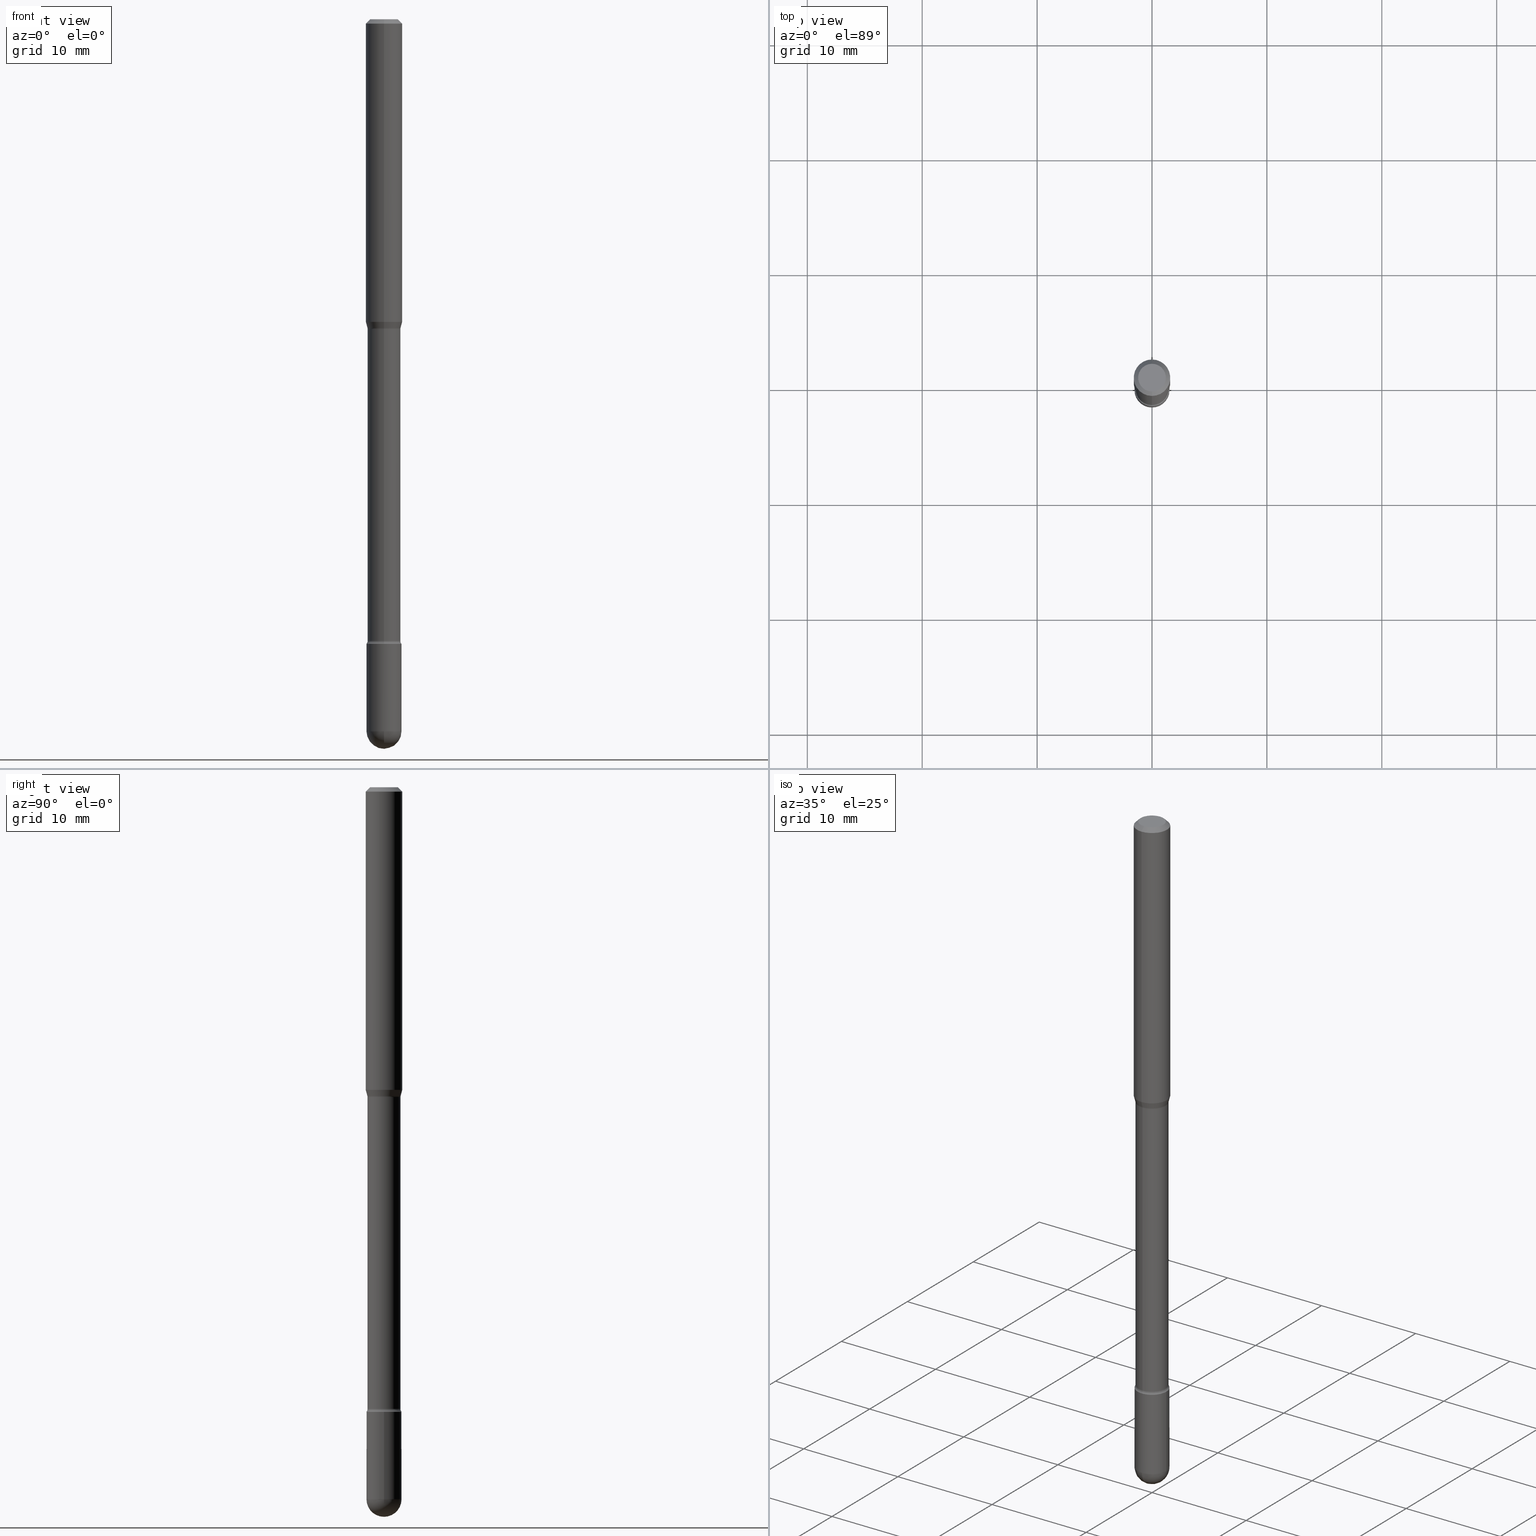
[diagram: canonical four-view strip — front | top / right | iso, engineering-drawing reading convention]
A machine part, canonical four-view strip (front | top / right | iso — engineering-drawing reading convention). The complete STEP part file that produces these views, byte-faithful:
ISO-10303-21;
HEADER;
FILE_DESCRIPTION (( 'STEP AP203' ),
    '1' );
FILE_NAME ('04593.STEP',
    '2024-04-09T22:14:13',
    ( '' ),
    ( '' ),
    'SwSTEP 2.0',
    'SolidWorks 2023',
    '' );
FILE_SCHEMA (( 'CONFIG_CONTROL_DESIGN' ));
ENDSEC;

DATA;
#1 = CARTESIAN_POINT ( 'NONE',  ( 0.000000000000000000, 0.000000000000000000, 0.000000000000000000 ) ) ;
#2 = CARTESIAN_POINT ( 'NONE',  ( -0.05999999999999999084, 4.263256414560600464E-16, -2.951361054152942712E-30 ) ) ;
#3 = ORIENTED_EDGE ( 'NONE', *, *, #488, .F. ) ;
#4 = ADVANCED_FACE ( 'NONE', ( #321 ), #490, .F. ) ;
#5 = APPROVAL_ROLE ( '' ) ;
#6 = DIRECTION ( 'NONE',  ( -6.982962677686265922E-15, -1.000000000000000000, 2.400100673301879051E-15 ) ) ;
#7 = EDGE_LOOP ( 'NONE', ( #3, #138, #44, #496 ) ) ;
#8 = EDGE_CURVE ( 'NONE', #464, #518, #281, .T. ) ;
#9 = DIRECTION ( 'NONE',  ( -2.445553399575097308E-29, 3.491360196293965350E-15, 1.000000000000000000 ) ) ;
#10 = AXIS2_PLACEMENT_3D ( 'NONE', #105, #279, #236 ) ;
#11 = AXIS2_PLACEMENT_3D ( 'NONE', #266, #137, #317 ) ;
#12 = ORIENTED_EDGE ( 'NONE', *, *, #394, .T. ) ;
#13 = PLANE ( 'NONE',  #218 ) ;
#14 = EDGE_LOOP ( 'NONE', ( #49, #548, #434, #20 ) ) ;
#15 = LINE ( 'NONE', #272, #294 ) ;
#16 = EDGE_CURVE ( 'NONE', #464, #282, #238, .T. ) ;
#17 = CARTESIAN_POINT ( 'NONE',  ( 0.05999999999999999778, -7.890747825785508520E-15, -2.140000000000000124 ) ) ;
#18 = DIRECTION ( 'NONE',  ( -2.445553399575097308E-29, 3.491360196293965350E-15, 1.000000000000000000 ) ) ;
#19 = VECTOR ( 'NONE', #166, 39.37007874015748143 ) ;
#20 = ORIENTED_EDGE ( 'NONE', *, *, #100, .F. ) ;
#21 = AXIS2_PLACEMENT_3D ( 'NONE', #345, #375, #254 ) ;
#22 = PERSON_AND_ORGANIZATION_ROLE ( 'creator' ) ;
#23 = EDGE_CURVE ( 'NONE', #363, #286, #234, .T. ) ;
#24 = DATE_AND_TIME ( #354, #554 ) ;
#25 = CARTESIAN_POINT ( 'NONE',  ( 5.233484275090707986E-29, -7.471510820069086511E-15, -2.140000000000000124 ) ) ;
#26 = EDGE_CURVE ( 'NONE', #429, #107, #521, .T. ) ;
#27 = VERTEX_POINT ( 'NONE', #17 ) ;
#28 = CARTESIAN_POINT ( 'NONE',  ( -3.974081752709260107E-16, -0.05691111260566766861, -1.058092501787273099 ) ) ;
#29 = FACE_OUTER_BOUND ( 'NONE', #482, .T. ) ;
#30 = SPHERICAL_SURFACE ( 'NONE', #247, 0.05999999999999994921 ) ;
#31 = AXIS2_PLACEMENT_3D ( 'NONE', #191, #364, #273 ) ;
#32 = FACE_OUTER_BOUND ( 'NONE', #532, .T. ) ;
#33 = FACE_OUTER_BOUND ( 'NONE', #451, .T. ) ;
#34 = CARTESIAN_POINT ( 'NONE',  ( 2.597026215697840121E-29, -3.707865152751812018E-15, -1.061974787463811021 ) ) ;
#35 = DIRECTION ( 'NONE',  ( -2.445553399575097308E-29, 3.491360196293965350E-15, 1.000000000000000000 ) ) ;
#36 = PERSON_AND_ORGANIZATION ( #213, #157 ) ;
#37 = CC_DESIGN_PERSON_AND_ORGANIZATION_ASSIGNMENT ( #533, #22, ( #436 ) ) ;
#38 = CARTESIAN_POINT ( 'NONE',  ( 4.263256414561126536E-16, 0.05999999999999256622, -2.140000000000000568 ) ) ;
#39 = DIRECTION ( 'NONE',  ( 1.000000000000000000, -6.982962677686268288E-15, 0.000000000000000000 ) ) ;
#40 = VECTOR ( 'NONE', #119, 39.37007874015748143 ) ;
#41 = CIRCLE ( 'NONE', #11, 0.05999999999999999778 ) ;
#42 = CARTESIAN_POINT ( 'NONE',  ( -4.189777606611237800E-16, -0.06000000000000750566, -2.139999999999999680 ) ) ;
#43 = ADVANCED_FACE ( 'NONE', ( #250 ), #153, .T. ) ;
#44 = ORIENTED_EDGE ( 'NONE', *, *, #160, .T. ) ;
#45 = CARTESIAN_POINT ( 'NONE',  ( 2.597026215697840121E-29, -3.707865152751812018E-15, -1.061974787463811021 ) ) ;
#46 = ADVANCED_FACE ( 'NONE', ( #29 ), #30, .T. ) ;
#47 = ORIENTED_EDGE ( 'NONE', *, *, #88, .T. ) ;
#48 = DIRECTION ( 'NONE',  ( 1.000000000000000000, -7.105427357601001070E-15, 4.926314024973731565E-29 ) ) ;
#49 = ORIENTED_EDGE ( 'NONE', *, *, #322, .F. ) ;
#50 = DIRECTION ( 'NONE',  ( -6.982962677686265922E-15, -1.000000000000000000, 3.491360196293965350E-15 ) ) ;
#51 = AXIS2_PLACEMENT_3D ( 'NONE', #25, #201, #368 ) ;
#52 = AXIS2_PLACEMENT_3D ( 'NONE', #1, #179, #79 ) ;
#53 = ORIENTED_EDGE ( 'NONE', *, *, #115, .F. ) ;
#54 = EDGE_CURVE ( 'NONE', #498, #264, #483, .T. ) ;
#55 = ADVANCED_BREP_SHAPE_REPRESENTATION ( '04593', ( #537, #528, #52 ), #316 ) ;
#56 = CARTESIAN_POINT ( 'NONE',  ( 4.007461029687488566E-16, 0.05639999999999628644, -1.061974787463811021 ) ) ;
#57 = ORIENTED_EDGE ( 'NONE', *, *, #251, .F. ) ;
#58 = DIRECTION ( 'NONE',  ( 6.982962677686265922E-15, 1.000000000000000000, -4.553079989440442247E-15 ) ) ;
#59 = ORIENTED_EDGE ( 'NONE', *, *, #455, .T. ) ;
#60 = APPROVAL_ROLE ( '' ) ;
#61 = LINE ( 'NONE', #92, #495 ) ;
#62 = AXIS2_PLACEMENT_3D ( 'NONE', #146, #284, #547 ) ;
#63 = ORIENTED_EDGE ( 'NONE', *, *, #23, .F. ) ;
#64 = CC_DESIGN_APPROVAL ( #67, ( #436 ) ) ;
#65 = ORIENTED_EDGE ( 'NONE', *, *, #455, .F. ) ;
#66 = EDGE_CURVE ( 'NONE', #232, #282, #339, .T. ) ;
#67 = APPROVAL ( #185, 'UNSPECIFIED' ) ;
#68 = ORIENTED_EDGE ( 'NONE', *, *, #263, .T. ) ;
#69 = DIRECTION ( 'NONE',  ( -1.807323732225338028E-15, -0.2588190451025192962, 0.9659258262890687563 ) ) ;
#70 = CIRCLE ( 'NONE', #324, 0.05999999999999999084 ) ;
#71 = APPROVAL_PERSON_ORGANIZATION ( #269, #328, #479 ) ;
#72 = DIRECTION ( 'NONE',  ( -2.445553399575097308E-29, 3.491360196293965350E-15, 1.000000000000000000 ) ) ;
#73 = DIRECTION ( 'NONE',  ( -2.445553399575097308E-29, 3.491360196293965350E-15, 1.000000000000000000 ) ) ;
#74 = DIRECTION ( 'NONE',  ( -1.000000000000000000, 6.982962677686265922E-15, -4.883557194083112901E-29 ) ) ;
#75 = CIRCLE ( 'NONE', #481, 0.05640000000000008201 ) ;
#76 = AXIS2_PLACEMENT_3D ( 'NONE', #342, #507, #513 ) ;
#77 = DIRECTION ( 'NONE',  ( -2.445553399575097308E-29, 3.491360196293965350E-15, 1.000000000000000000 ) ) ;
#78 = ORIENTED_EDGE ( 'NONE', *, *, #158, .T. ) ;
#79 = DIRECTION ( 'NONE',  ( 1.000000000000000000, 0.000000000000000000, 0.000000000000000000 ) ) ;
#80 = CARTESIAN_POINT ( 'NONE',  ( 2.536612333356597965E-29, -3.621359212867038720E-15, -1.037234490073830173 ) ) ;
#81 = CARTESIAN_POINT ( 'NONE',  ( -4.985835351867481885E-16, -0.07140000000000755465, -2.130251153914436646 ) ) ;
#82 =( CONVERSION_BASED_UNIT ( 'INCH', #467 ) LENGTH_UNIT ( ) NAMED_UNIT ( #476 ) );
#83 = CARTESIAN_POINT ( 'NONE',  ( -4.364351673553912750E-16, -0.06250000000000005551, -0.01499999999999986587 ) ) ;
#84 = ORIENTED_EDGE ( 'NONE', *, *, #94, .T. ) ;
#85 = CARTESIAN_POINT ( 'NONE',  ( -3.773273898774340269E-16, -0.04749999999999999362, 8.308682298133193977E-17 ) ) ;
#86 = CIRCLE ( 'NONE', #403, 0.05691111260566397018 ) ;
#87 = CIRCLE ( 'NONE', #76, 0.05999999999999999084 ) ;
#88 = EDGE_CURVE ( 'NONE', #164, #337, #243, .T. ) ;
#89 = ORIENTED_EDGE ( 'NONE', *, *, #542, .F. ) ;
#90 = CARTESIAN_POINT ( 'NONE',  ( 5.966943887091733341E-29, -8.519214466777275048E-15, -2.440000000000000391 ) ) ;
#91 = ORIENTED_EDGE ( 'NONE', *, *, #520, .F. ) ;
#92 = CARTESIAN_POINT ( 'NONE',  ( 4.043777764598218465E-16, 0.05691111260566027868, -1.058092501787273321 ) ) ;
#93 = VERTEX_POINT ( 'NONE', #167 ) ;
#94 = EDGE_CURVE ( 'NONE', #264, #402, #374, .T. ) ;
#95 = CARTESIAN_POINT ( 'NONE',  ( 4.242334931549550257E-16, 0.05691111260566027868, -1.058092501787273321 ) ) ;
#96 = AXIS2_PLACEMENT_3D ( 'NONE', #544, #148, #327 ) ;
#97 = LOCAL_TIME ( 18, 14, 13.00000000000000000, #283 ) ;
#98 = EDGE_LOOP ( 'NONE', ( #492, #486, #445, #329, #89 ) ) ;
#99 = PERSON_AND_ORGANIZATION_ROLE ( 'design_supplier' ) ;
#100 = EDGE_CURVE ( 'NONE', #267, #145, #112, .T. ) ;
#101 = DIRECTION ( 'NONE',  ( -2.445553399575096747E-29, 3.491360196293965350E-15, 1.000000000000000000 ) ) ;
#102 = ORIENTED_EDGE ( 'NONE', *, *, #497, .T. ) ;
#103 = DIRECTION ( 'NONE',  ( -2.445468806185136597E-29, 3.491481338843145583E-15, 1.000000000000000000 ) ) ;
#104 = FACE_OUTER_BOUND ( 'NONE', #229, .T. ) ;
#105 = CARTESIAN_POINT ( 'NONE',  ( 3.316907271900976096E-16, 0.04749999999999999362, 3.182069695034395356E-17 ) ) ;
#106 = DATE_AND_TIME ( #541, #208 ) ;
#107 = VERTEX_POINT ( 'NONE', #378 ) ;
#108 = ORIENTED_EDGE ( 'NONE', *, *, #488, .T. ) ;
#109 = CARTESIAN_POINT ( 'NONE',  ( 4.440892098500877611E-16, 0.06249999999999636402, -1.037234490073830395 ) ) ;
#110 = ORIENTED_EDGE ( 'NONE', *, *, #100, .T. ) ;
#111 = PLANE ( 'NONE',  #411 ) ;
#112 = CIRCLE ( 'NONE', #381, 0.01499999999999998557 ) ;
#113 = CONICAL_SURFACE ( 'NONE', #341, 0.06250000000000000000, 0.7853981633974483900 ) ;
#114 = DIRECTION ( 'NONE',  ( -7.105427357601001070E-15, -1.000000000000000000, 0.000000000000000000 ) ) ;
#115 = EDGE_CURVE ( 'NONE', #468, #402, #373, .T. ) ;
#116 = CARTESIAN_POINT ( 'NONE',  ( -3.938390950214793722E-16, -0.05640000000000369718, -1.061974787463810799 ) ) ;
#117 = UNCERTAINTY_MEASURE_WITH_UNIT (LENGTH_MEASURE( 1.000000000000000082E-05 ), #82, 'distance_accuracy_value', 'NONE');
#118 = CARTESIAN_POINT ( 'NONE',  ( 2.536612333356597965E-29, -3.621359212867038720E-15, -1.037234490073830173 ) ) ;
#119 = DIRECTION ( 'NONE',  ( -2.445468806185136877E-29, 3.491481338843145188E-15, 1.000000000000000000 ) ) ;
#120 = EDGE_CURVE ( 'NONE', #144, #27, #246, .T. ) ;
#121 = CIRCLE ( 'NONE', #435, 0.06250000000000000000 ) ;
#122 = FACE_OUTER_BOUND ( 'NONE', #136, .T. ) ;
#123 = AXIS2_PLACEMENT_3D ( 'NONE', #189, #9, #182 ) ;
#124 = DIRECTION ( 'NONE',  ( -2.445553399575097308E-29, 3.491360196293965350E-15, 1.000000000000000000 ) ) ;
#125 = DIRECTION ( 'NONE',  ( 7.105427357601006592E-15, 1.000000000000000000, 0.000000000000000000 ) ) ;
#126 = CARTESIAN_POINT ( 'NONE',  ( 5.209462746237647655E-29, -7.437732150941334184E-15, -2.130251153914437090 ) ) ;
#127 = ORIENTED_EDGE ( 'NONE', *, *, #512, .T. ) ;
#128 = ORIENTED_EDGE ( 'NONE', *, *, #555, .T. ) ;
#129 = AXIS2_PLACEMENT_3D ( 'NONE', #45, #559, #222 ) ;
#130 = CC_DESIGN_APPROVAL ( #328, ( #235 ) ) ;
#131 = PRODUCT_DEFINITION ( 'UNKNOWN', '', #436, #458 ) ;
#132 = FACE_OUTER_BOUND ( 'NONE', #450, .T. ) ;
#133 = ORIENTED_EDGE ( 'NONE', *, *, #377, .T. ) ;
#134 = MECHANICAL_CONTEXT ( 'NONE', #396, 'mechanical' ) ;
#135 = DIRECTION ( 'NONE',  ( -6.982962677686265922E-15, -1.000000000000000000, 3.483106191921935554E-15 ) ) ;
#136 = EDGE_LOOP ( 'NONE', ( #318, #68, #65, #350, #187 ) ) ;
#137 = DIRECTION ( 'NONE',  ( -2.445468806185136597E-29, 3.491481338843145583E-15, 1.000000000000000000 ) ) ;
#138 = ORIENTED_EDGE ( 'NONE', *, *, #322, .T. ) ;
#139 = PERSON_AND_ORGANIZATION_ROLE ( 'classification_officer' ) ;
#140 = TOROIDAL_SURFACE ( 'NONE', #31, 0.07140000000000013003, 0.01500000000000004108 ) ;
#141 = SPHERICAL_SURFACE ( 'NONE', #303, 0.05999999999999994921 ) ;
#142 = ORIENTED_EDGE ( 'NONE', *, *, #8, .T. ) ;
#143 = FACE_OUTER_BOUND ( 'NONE', #7, .T. ) ;
#144 = VERTEX_POINT ( 'NONE', #506 ) ;
#145 = VERTEX_POINT ( 'NONE', #116 ) ;
#146 = CARTESIAN_POINT ( 'NONE',  ( -1.169113584055446105E-44, 1.669184350826100908E-30, 4.780733988912460139E-16 ) ) ;
#147 = AXIS2_PLACEMENT_3D ( 'NONE', #34, #124, #387 ) ;
#148 = DIRECTION ( 'NONE',  ( -2.445468806185136597E-29, 3.491481338843145583E-15, 1.000000000000000000 ) ) ;
#149 = AXIS2_PLACEMENT_3D ( 'NONE', #278, #362, #395 ) ;
#150 = FACE_OUTER_BOUND ( 'NONE', #14, .T. ) ;
#151 = ORIENTED_EDGE ( 'NONE', *, *, #251, .T. ) ;
#152 = EDGE_CURVE ( 'NONE', #145, #402, #369, .T. ) ;
#153 = CYLINDRICAL_SURFACE ( 'NONE', #240, 0.06250000000000000000 ) ;
#154 = DIRECTION ( 'NONE',  ( 1.000000000000000000, -7.105427357601001070E-15, 4.926314024973731565E-29 ) ) ;
#155 = CIRCLE ( 'NONE', #461, 0.05691111260566397018 ) ;
#156 = PRODUCT ( '04593', '04593', '', ( #134 ) ) ;
#157 = ORGANIZATION ( 'UNSPECIFIED', 'UNSPECIFIED', '' ) ;
#158 = EDGE_CURVE ( 'NONE', #93, #383, #302, .T. ) ;
#159 = LINE ( 'NONE', #28, #471 ) ;
#160 = EDGE_CURVE ( 'NONE', #267, #164, #159, .T. ) ;
#161 = CC_DESIGN_DATE_AND_TIME_ASSIGNMENT ( #106, #188, ( #131 ) ) ;
#162 = DIRECTION ( 'NONE',  ( 2.445553399575097308E-29, -3.491360196293965350E-15, -1.000000000000000000 ) ) ;
#163 = DIRECTION ( 'NONE',  ( -6.982962677686265133E-15, -1.000000000000000000, 4.843702116425991330E-15 ) ) ;
#164 = VERTEX_POINT ( 'NONE', #457 ) ;
#165 = LINE ( 'NONE', #219, #257 ) ;
#166 = DIRECTION ( 'NONE',  ( -2.445468806185136877E-29, 3.491481338843145188E-15, 1.000000000000000000 ) ) ;
#167 = CARTESIAN_POINT ( 'NONE',  ( 6.116237514330379097E-29, -8.725029406710421437E-15, -2.500000000000000000 ) ) ;
#168 = AXIS2_PLACEMENT_3D ( 'NONE', #81, #320, #406 ) ;
#169 = PERSON_AND_ORGANIZATION_ROLE ( 'creator' ) ;
#170 = AXIS2_PLACEMENT_3D ( 'NONE', #430, #443, #440 ) ;
#171 = EDGE_LOOP ( 'NONE', ( #344, #306, #178, #174 ) ) ;
#172 = DIRECTION ( 'NONE',  ( 1.000000000000000000, -6.982962677686266711E-15, 4.876176775795935793E-29 ) ) ;
#173 = DIRECTION ( 'NONE',  ( -6.982962677686265133E-15, -1.000000000000000000, 4.843702116425991330E-15 ) ) ;
#174 = ORIENTED_EDGE ( 'NONE', *, *, #459, .T. ) ;
#175 = CC_DESIGN_PERSON_AND_ORGANIZATION_ASSIGNMENT ( #280, #139, ( #235 ) ) ;
#176 = FACE_OUTER_BOUND ( 'NONE', #478, .T. ) ;
#177 = DIRECTION ( 'NONE',  ( -2.445553399575097308E-29, 3.491360196293965350E-15, 1.000000000000000000 ) ) ;
#178 = ORIENTED_EDGE ( 'NONE', *, *, #16, .T. ) ;
#179 = DIRECTION ( 'NONE',  ( 0.000000000000000000, 0.000000000000000000, 1.000000000000000000 ) ) ;
#180 = AXIS2_PLACEMENT_3D ( 'NONE', #325, #449, #199 ) ;
#181 = AXIS2_PLACEMENT_3D ( 'NONE', #358, #526, #276 ) ;
#182 = DIRECTION ( 'NONE',  ( -6.982962677686265922E-15, -1.000000000000000000, 2.421851058212999609E-15 ) ) ;
#183 = DIRECTION ( 'NONE',  ( 1.000000000000000000, -6.982962677686265922E-15, 4.876176775795935793E-29 ) ) ;
#184 = ORIENTED_EDGE ( 'NONE', *, *, #542, .T. ) ;
#185 = APPROVAL_STATUS ( 'not_yet_approved' ) ;
#186 = CARTESIAN_POINT ( 'NONE',  ( 2.024167998139961065E-45, -2.888618693388451432E-31, -8.275278634263140498E-17 ) ) ;
#187 = ORIENTED_EDGE ( 'NONE', *, *, #520, .T. ) ;
#188 = DATE_TIME_ROLE ( 'creation_date' ) ;
#189 = CARTESIAN_POINT ( 'NONE',  ( 2.597116051745163979E-29, -3.707736502418893280E-15, -1.061974787463811021 ) ) ;
#190 = ORIENTED_EDGE ( 'NONE', *, *, #94, .F. ) ;
#191 = CARTESIAN_POINT ( 'NONE',  ( 5.209462746237647655E-29, -7.437732150941334184E-15, -2.130251153914437090 ) ) ;
#192 = AXIS2_PLACEMENT_3D ( 'NONE', #205, #72, #560 ) ;
#193 = CARTESIAN_POINT ( 'NONE',  ( 5.073275133327644228E-16, 0.07139999999999269154, -2.130251153914437090 ) ) ;
#194 = CIRCLE ( 'NONE', #123, 0.05639999999999999181 ) ;
#195 = ORIENTED_EDGE ( 'NONE', *, *, #160, .F. ) ;
#196 = EDGE_CURVE ( 'NONE', #383, #144, #70, .T. ) ;
#197 = ORIENTED_EDGE ( 'NONE', *, *, #497, .F. ) ;
#198 = ADVANCED_FACE ( 'NONE', ( #33 ), #111, .T. ) ;
#199 = DIRECTION ( 'NONE',  ( -6.982962677686265133E-15, -1.000000000000000000, 3.491360196293964561E-15 ) ) ;
#200 = PRODUCT_DEFINITION_SHAPE ( 'NONE', 'NONE',  #131 ) ;
#201 = DIRECTION ( 'NONE',  ( -2.445553399575097308E-29, 3.491360196293965350E-15, 1.000000000000000000 ) ) ;
#202 = EDGE_CURVE ( 'NONE', #498, #363, #508, .T. ) ;
#203 = EDGE_LOOP ( 'NONE', ( #142, #133 ) ) ;
#204 = CONICAL_SURFACE ( 'NONE', #170, 0.05691111260566397018, 0.2617993877991514062 ) ;
#205 = CARTESIAN_POINT ( 'NONE',  ( 2.597116051745163979E-29, -3.707736502418893280E-15, -1.061974787463811021 ) ) ;
#206 = CARTESIAN_POINT ( 'NONE',  ( -4.985835351867734320E-16, -0.07140000000000369662, -1.061974787463810799 ) ) ;
#207 = AXIS2_PLACEMENT_3D ( 'NONE', #407, #452, #323 ) ;
#208 = LOCAL_TIME ( 18, 14, 13.00000000000000000, #398 ) ;
#209 = ADVANCED_FACE ( 'NONE', ( #104 ), #444, .T. ) ;
#210 = ADVANCED_FACE ( 'NONE', ( #367 ), #543, .T. ) ;
#211 = DIRECTION ( 'NONE',  ( -6.982962677686265922E-15, -1.000000000000000000, 4.370956789862821150E-15 ) ) ;
#212 = DIRECTION ( 'NONE',  ( -1.000000000000000000, 7.105427357601001070E-15, -4.926315508542082329E-29 ) ) ;
#213 = PERSON ( 'UNSPECIFIED', 'UNSPECIFIED', 'UNSPECIFIED', ('UNSPECIFIED'), ('UNSPECIFIED'), ('UNSPECIFIED') ) ;
#214 = DIRECTION ( 'NONE',  ( -1.000000000000000000, 6.982962677686265922E-15, -4.883557194083113462E-29 ) ) ;
#215 = DIRECTION ( 'NONE',  ( -2.445468806185136597E-29, 3.491481338843145583E-15, 1.000000000000000000 ) ) ;
#216 = ADVANCED_FACE ( 'NONE', ( #312 ), #140, .F. ) ;
#217 = DIRECTION ( 'NONE',  ( -6.982962677686265922E-15, -1.000000000000000000, 2.400100673301879051E-15 ) ) ;
#218 = AXIS2_PLACEMENT_3D ( 'NONE', #538, #101, #355 ) ;
#219 = CARTESIAN_POINT ( 'NONE',  ( -4.287811248607203282E-16, -0.06250000000000005551, -0.01499999999999986587 ) ) ;
#220 = ORIENTED_EDGE ( 'NONE', *, *, #473, .F. ) ;
#221 = APPLICATION_PROTOCOL_DEFINITION ( 'international standard', 'config_control_design', 1994, #396 ) ;
#222 = DIRECTION ( 'NONE',  ( -6.982962677686265922E-15, -1.000000000000000000, 3.491360196293965350E-15 ) ) ;
#223 = EDGE_LOOP ( 'NONE', ( #299, #441, #47, #309 ) ) ;
#224 =( NAMED_UNIT ( * ) PLANE_ANGLE_UNIT ( ) SI_UNIT ( $, .RADIAN. ) );
#225 = DIRECTION ( 'NONE',  ( -2.445553399575097308E-29, 3.491360196293965350E-15, 1.000000000000000000 ) ) ;
#226 = ORIENTED_EDGE ( 'NONE', *, *, #502, .F. ) ;
#227 = CONICAL_SURFACE ( 'NONE', #241, 0.06250000000000000000, 0.7853981633974483900 ) ;
#228 = CYLINDRICAL_SURFACE ( 'NONE', #149, 0.05999999999999999084 ) ;
#229 = EDGE_LOOP ( 'NONE', ( #190, #260, #102, #226 ) ) ;
#230 = DIRECTION ( 'NONE',  ( 4.937700262164548042E-15, 0.7071067811865451302, -0.7071067811865499042 ) ) ;
#231 = DIRECTION ( 'NONE',  ( -1.000000000000000000, 6.982962677686265922E-15, -4.883557194083113462E-29 ) ) ;
#232 = VERTEX_POINT ( 'NONE', #109 ) ;
#233 = COORDINATED_UNIVERSAL_TIME_OFFSET ( 5, 0, .BEHIND. ) ;
#234 = CIRCLE ( 'NONE', #51, 0.05999999999999999778 ) ;
#235 = SECURITY_CLASSIFICATION ( '', '', #447 ) ;
#236 = DIRECTION ( 'NONE',  ( 6.982962677686265922E-15, 1.000000000000000000, -3.491360196293965350E-15 ) ) ;
#237 = ADVANCED_FACE ( 'NONE', ( #150 ), #493, .F. ) ;
#238 = LINE ( 'NONE', #409, #535 ) ;
#239 = EDGE_LOOP ( 'NONE', ( #385, #12, #127, #390 ) ) ;
#240 = AXIS2_PLACEMENT_3D ( 'NONE', #504, #242, #414 ) ;
#241 = AXIS2_PLACEMENT_3D ( 'NONE', #298, #338, #258 ) ;
#242 = DIRECTION ( 'NONE',  ( -2.445553399575097308E-29, 3.491360196293965350E-15, 1.000000000000000000 ) ) ;
#243 = LINE ( 'NONE', #505, #562 ) ;
#244 = CARTESIAN_POINT ( 'NONE',  ( 0.05999999999999999084, -4.189777606611759435E-16, 2.925706065477561055E-30 ) ) ;
#245 = EDGE_CURVE ( 'NONE', #232, #164, #360, .T. ) ;
#246 = LINE ( 'NONE', #244, #40 ) ;
#247 = AXIS2_PLACEMENT_3D ( 'NONE', #289, #214, #456 ) ;
#248 = AXIS2_PLACEMENT_3D ( 'NONE', #319, #489, #135 ) ;
#249 = DIRECTION ( 'NONE',  ( 1.000000000000000000, -6.982962677686265922E-15, 4.883557194083112340E-29 ) ) ;
#250 = FACE_OUTER_BOUND ( 'NONE', #223, .T. ) ;
#251 = EDGE_CURVE ( 'NONE', #164, #232, #501, .T. ) ;
#252 = DIRECTION ( 'NONE',  ( -6.982962677686265922E-15, -1.000000000000000000, 4.370956789862821150E-15 ) ) ;
#253 = DIRECTION ( 'NONE',  ( -6.982962677686265922E-15, -1.000000000000000000, 3.491360196293966139E-15 ) ) ;
#254 = DIRECTION ( 'NONE',  ( -6.982962677686265922E-15, -1.000000000000000000, 2.400100673301879051E-15 ) ) ;
#255 = EDGE_LOOP ( 'NONE', ( #359, #301, #426, #410 ) ) ;
#256 = AXIS2_PLACEMENT_3D ( 'NONE', #80, #428, #252 ) ;
#257 = VECTOR ( 'NONE', #524, 39.37007874015748143 ) ;
#258 = DIRECTION ( 'NONE',  ( 6.982962677686265922E-15, 1.000000000000000000, -3.483106191921935554E-15 ) ) ;
#259 = ADVANCED_FACE ( 'NONE', ( #300 ), #227, .T. ) ;
#260 = ORIENTED_EDGE ( 'NONE', *, *, #293, .T. ) ;
#261 = DIRECTION ( 'NONE',  ( -2.445468806185136597E-29, 3.491481338843145583E-15, 1.000000000000000000 ) ) ;
#262 = CARTESIAN_POINT ( 'NONE',  ( -0.06000000000000001166, -7.569166624494744555E-15, -2.140000000000000124 ) ) ;
#263 = EDGE_CURVE ( 'NONE', #107, #285, #509, .T. ) ;
#264 = VERTEX_POINT ( 'NONE', #380 ) ;
#265 = CALENDAR_DATE ( 2024, 9, 4 ) ;
#266 = CARTESIAN_POINT ( 'NONE',  ( 5.233303245236192586E-29, -7.471770065124331886E-15, -2.140000000000000124 ) ) ;
#267 = VERTEX_POINT ( 'NONE', #290 ) ;
#268 = EDGE_CURVE ( 'NONE', #93, #429, #446, .T. ) ;
#269 = PERSON_AND_ORGANIZATION ( #213, #157 ) ;
#270 = AXIS2_PLACEMENT_3D ( 'NONE', #330, #73, #163 ) ;
#271 = AXIS2_PLACEMENT_3D ( 'NONE', #311, #103, #485 ) ;
#272 = CARTESIAN_POINT ( 'NONE',  ( -3.938390950215056511E-16, -0.05640000000000004038, 6.749861139622258280E-16 ) ) ;
#273 = DIRECTION ( 'NONE',  ( -6.982962677686265922E-15, -1.000000000000000000, 3.491360196293965350E-15 ) ) ;
#274 = ORIENTED_EDGE ( 'NONE', *, *, #305, .T. ) ;
#275 = CALENDAR_DATE ( 2024, 9, 4 ) ;
#276 = DIRECTION ( 'NONE',  ( -6.982962677686265922E-15, -1.000000000000000000, 4.553079989440439092E-15 ) ) ;
#277 = ORIENTED_EDGE ( 'NONE', *, *, #305, .F. ) ;
#278 = CARTESIAN_POINT ( 'NONE',  ( 0.000000000000000000, 0.000000000000000000, 0.000000000000000000 ) ) ;
#279 = DIRECTION ( 'NONE',  ( 2.445553399575096747E-29, -3.491360196293965350E-15, -1.000000000000000000 ) ) ;
#280 = PERSON_AND_ORGANIZATION ( #213, #157 ) ;
#281 = CIRCLE ( 'NONE', #207, 0.04749999999999999362 ) ;
#282 = VERTEX_POINT ( 'NONE', #343 ) ;
#283 = COORDINATED_UNIVERSAL_TIME_OFFSET ( 5, 0, .BEHIND. ) ;
#284 = DIRECTION ( 'NONE',  ( -2.445553399575097308E-29, 3.491360196293965350E-15, 1.000000000000000000 ) ) ;
#285 = VERTEX_POINT ( 'NONE', #262 ) ;
#286 = VERTEX_POINT ( 'NONE', #38 ) ;
#287 = AXIS2_PLACEMENT_3D ( 'NONE', #291, #154, #125 ) ;
#288 = CIRCLE ( 'NONE', #361, 0.05999999999999999778 ) ;
#289 = CARTESIAN_POINT ( 'NONE',  ( 5.966943887091733341E-29, -8.519214466777275048E-15, -2.440000000000000391 ) ) ;
#290 = CARTESIAN_POINT ( 'NONE',  ( -3.974081752709260107E-16, -0.05691111260566766861, -1.058092501787273099 ) ) ;
#291 = CARTESIAN_POINT ( 'NONE',  ( 5.073275133327374044E-16, 0.07139999999999628588, -1.061974787463811243 ) ) ;
#292 = VECTOR ( 'NONE', #35, 39.37007874015748143 ) ;
#293 = EDGE_CURVE ( 'NONE', #264, #498, #75, .T. ) ;
#294 = VECTOR ( 'NONE', #225, 39.37007874015748143 ) ;
#295 = CARTESIAN_POINT ( 'NONE',  ( -1.169113584055446105E-44, 1.669184350826100908E-30, 4.780733988912460139E-16 ) ) ;
#296 = DIRECTION ( 'NONE',  ( -2.445553399575097308E-29, 3.491360196293965350E-15, 1.000000000000000000 ) ) ;
#297 =( LENGTH_UNIT ( ) NAMED_UNIT ( * ) SI_UNIT ( $, .METRE. ) );
#298 = CARTESIAN_POINT ( 'NONE',  ( 3.668330099362665842E-31, -5.237040294440977311E-17, -0.01500000000000008271 ) ) ;
#299 = ORIENTED_EDGE ( 'NONE', *, *, #66, .F. ) ;
#300 = FACE_OUTER_BOUND ( 'NONE', #171, .T. ) ;
#301 = ORIENTED_EDGE ( 'NONE', *, *, #54, .F. ) ;
#302 = CIRCLE ( 'NONE', #315, 0.05999999999999994921 ) ;
#303 = AXIS2_PLACEMENT_3D ( 'NONE', #401, #231, #58 ) ;
#304 = DIRECTION ( 'NONE',  ( -2.445553399575097308E-29, 3.491360196293965350E-15, 1.000000000000000000 ) ) ;
#305 = EDGE_CURVE ( 'NONE', #267, #468, #86, .T. ) ;
#306 = ORIENTED_EDGE ( 'NONE', *, *, #8, .F. ) ;
#307 = APPROVAL_STATUS ( 'not_yet_approved' ) ;
#308 = FACE_OUTER_BOUND ( 'NONE', #566, .T. ) ;
#309 = ORIENTED_EDGE ( 'NONE', *, *, #459, .F. ) ;
#310 = CALENDAR_DATE ( 2024, 9, 4 ) ;
#311 = CARTESIAN_POINT ( 'NONE',  ( 5.966943887091733341E-29, -8.519214466777275048E-15, -2.440000000000000391 ) ) ;
#312 = FACE_OUTER_BOUND ( 'NONE', #255, .T. ) ;
#313 = ORIENTED_EDGE ( 'NONE', *, *, #16, .F. ) ;
#314 = ADVANCED_FACE ( 'NONE', ( #32 ), #391, .F. ) ;
#315 = AXIS2_PLACEMENT_3D ( 'NONE', #333, #212, #114 ) ;
#316 =( GEOMETRIC_REPRESENTATION_CONTEXT ( 3 ) GLOBAL_UNCERTAINTY_ASSIGNED_CONTEXT ( ( #117 ) ) GLOBAL_UNIT_ASSIGNED_CONTEXT ( ( #82, #224, #469 ) ) REPRESENTATION_CONTEXT ( 'NONE', 'WORKASPACE' ) );
#317 = DIRECTION ( 'NONE',  ( 1.000000000000000000, -6.982962677686268288E-15, 0.000000000000000000 ) ) ;
#318 = ORIENTED_EDGE ( 'NONE', *, *, #26, .T. ) ;
#319 = CARTESIAN_POINT ( 'NONE',  ( 3.668330099362665842E-31, -5.237040294440977311E-17, -0.01500000000000008271 ) ) ;
#320 = DIRECTION ( 'NONE',  ( -1.000000000000000000, 6.982962677686265922E-15, -4.883557194083112901E-29 ) ) ;
#321 = FACE_OUTER_BOUND ( 'NONE', #203, .T. ) ;
#322 = EDGE_CURVE ( 'NONE', #468, #267, #155, .T. ) ;
#323 = DIRECTION ( 'NONE',  ( -6.982962677686266711E-15, -1.000000000000000000, 3.491360196293965350E-15 ) ) ;
#324 = AXIS2_PLACEMENT_3D ( 'NONE', #335, #372, #417 ) ;
#325 = CARTESIAN_POINT ( 'NONE',  ( -1.169113584055446105E-44, 1.669184350826100908E-30, 4.780733988912460139E-16 ) ) ;
#326 = EDGE_CURVE ( 'NONE', #337, #282, #121, .T. ) ;
#327 = DIRECTION ( 'NONE',  ( 1.000000000000000000, -6.982962677686269077E-15, 0.000000000000000000 ) ) ;
#328 = APPROVAL ( #491, 'UNSPECIFIED' ) ;
#329 = ORIENTED_EDGE ( 'NONE', *, *, #120, .T. ) ;
#330 = CARTESIAN_POINT ( 'NONE',  ( 5.209642951404224994E-29, -7.437474086886154387E-15, -2.130251153914437090 ) ) ;
#331 = AXIS2_PLACEMENT_3D ( 'NONE', #90, #249, #462 ) ;
#332 = AXIS2_PLACEMENT_3D ( 'NONE', #186, #18, #531 ) ;
#333 = CARTESIAN_POINT ( 'NONE',  ( 5.966943887091733341E-29, -8.519214466777275048E-15, -2.440000000000000391 ) ) ;
#334 = CC_DESIGN_DATE_AND_TIME_ASSIGNMENT ( #494, #437, ( #235 ) ) ;
#335 = CARTESIAN_POINT ( 'NONE',  ( 5.966943887091733341E-29, -8.519214466777275048E-15, -2.440000000000000391 ) ) ;
#336 = DIRECTION ( 'NONE',  ( 6.982962677686265922E-15, 1.000000000000000000, -3.483106191921935554E-15 ) ) ;
#337 = VERTEX_POINT ( 'NONE', #83 ) ;
#338 = DIRECTION ( 'NONE',  ( 2.445553399575097308E-29, -3.491360196293965350E-15, -1.000000000000000000 ) ) ;
#339 = LINE ( 'NONE', #419, #453 ) ;
#340 = CONICAL_SURFACE ( 'NONE', #21, 0.05691111260566397018, 0.2617993877991514062 ) ;
#341 = AXIS2_PLACEMENT_3D ( 'NONE', #517, #162, #336 ) ;
#342 = CARTESIAN_POINT ( 'NONE',  ( 5.966943887091733341E-29, -8.519214466777275048E-15, -2.440000000000000391 ) ) ;
#343 = CARTESIAN_POINT ( 'NONE',  ( 4.440892098500881555E-16, 0.06249999999999995837, -0.01500000000000030129 ) ) ;
#344 = ORIENTED_EDGE ( 'NONE', *, *, #555, .F. ) ;
#345 = CARTESIAN_POINT ( 'NONE',  ( 2.587621714810785963E-29, -3.694182044737187079E-15, -1.058092501787273321 ) ) ;
#346 = ORIENTED_EDGE ( 'NONE', *, *, #158, .F. ) ;
#347 = ADVANCED_FACE ( 'NONE', ( #132 ), #340, .T. ) ;
#348 = CYLINDRICAL_SURFACE ( 'NONE', #454, 0.06250000000000000000 ) ;
#349 = DIRECTION ( 'NONE',  ( -6.982962677686265922E-15, -1.000000000000000000, 3.483106191921935554E-15 ) ) ;
#350 = ORIENTED_EDGE ( 'NONE', *, *, #120, .F. ) ;
#351 = CC_DESIGN_PERSON_AND_ORGANIZATION_ASSIGNMENT ( #561, #169, ( #131 ) ) ;
#352 = CARTESIAN_POINT ( 'NONE',  ( 3.840629472727447874E-16, 0.04749999999999999362, -2.485923956665947374E-16 ) ) ;
#353 = ORIENTED_EDGE ( 'NONE', *, *, #377, .F. ) ;
#354 = CALENDAR_DATE ( 2024, 9, 4 ) ;
#355 = DIRECTION ( 'NONE',  ( -6.982962677686265922E-15, -1.000000000000000000, 3.491360196293965350E-15 ) ) ;
#356 = ORIENTED_EDGE ( 'NONE', *, *, #54, .T. ) ;
#357 = PERSON_AND_ORGANIZATION ( #213, #157 ) ;
#358 = CARTESIAN_POINT ( 'NONE',  ( 5.233484275090707986E-29, -7.471510820069086511E-15, -2.140000000000000124 ) ) ;
#359 = ORIENTED_EDGE ( 'NONE', *, *, #394, .F. ) ;
#360 = CIRCLE ( 'NONE', #424, 0.06250000000000000000 ) ;
#361 = AXIS2_PLACEMENT_3D ( 'NONE', #558, #215, #39 ) ;
#362 = DIRECTION ( 'NONE',  ( -2.445468806185136597E-29, 3.491481338843145583E-15, 1.000000000000000000 ) ) ;
#363 = VERTEX_POINT ( 'NONE', #42 ) ;
#364 = DIRECTION ( 'NONE',  ( -2.445553399575097308E-29, 3.491360196293965350E-15, 1.000000000000000000 ) ) ;
#365 = ADVANCED_FACE ( 'NONE', ( #556 ), #113, .T. ) ;
#366 = EDGE_LOOP ( 'NONE', ( #353, #128, #539, #313 ) ) ;
#367 = FACE_OUTER_BOUND ( 'NONE', #523, .T. ) ;
#368 = DIRECTION ( 'NONE',  ( -6.982962677686265922E-15, -1.000000000000000000, 4.553079989440439092E-15 ) ) ;
#369 = CIRCLE ( 'NONE', #192, 0.05639999999999999181 ) ;
#370 = APPROVAL_PERSON_ORGANIZATION ( #36, #549, #5 ) ;
#371 = ORIENTED_EDGE ( 'NONE', *, *, #152, .F. ) ;
#372 = DIRECTION ( 'NONE',  ( -2.445468806185136597E-29, 3.491481338843145583E-15, 1.000000000000000000 ) ) ;
#373 = CIRCLE ( 'NONE', #287, 0.01499999999999998557 ) ;
#374 = LINE ( 'NONE', #551, #292 ) ;
#375 = DIRECTION ( 'NONE',  ( -2.445553399575097308E-29, 3.491360196293965350E-15, 1.000000000000000000 ) ) ;
#376 = APPROVAL_DATE_TIME ( #432, #549 ) ;
#377 = EDGE_CURVE ( 'NONE', #518, #464, #382, .T. ) ;
#378 = CARTESIAN_POINT ( 'NONE',  ( -0.05999999999999999084, -7.569166624494744555E-15, -2.440000000000000391 ) ) ;
#379 = PERSON_AND_ORGANIZATION_ROLE ( 'design_owner' ) ;
#380 = CARTESIAN_POINT ( 'NONE',  ( 4.135358722124309276E-16, 0.05639999999999264352, -2.130251153914437090 ) ) ;
#381 = AXIS2_PLACEMENT_3D ( 'NONE', #206, #74, #415 ) ;
#382 = CIRCLE ( 'NONE', #332, 0.04749999999999999362 ) ;
#383 = VERTEX_POINT ( 'NONE', #438 ) ;
#384 = PERSON_AND_ORGANIZATION ( #213, #157 ) ;
#385 = ORIENTED_EDGE ( 'NONE', *, *, #293, .F. ) ;
#386 = APPLICATION_PROTOCOL_DEFINITION ( 'international standard', 'config_control_design', 1994, #420 ) ;
#387 = DIRECTION ( 'NONE',  ( -6.982962677686265922E-15, -1.000000000000000000, 3.491360196293965350E-15 ) ) ;
#388 = ORIENTED_EDGE ( 'NONE', *, *, #268, .F. ) ;
#389 = CARTESIAN_POINT ( 'NONE',  ( -3.938390950214538328E-16, -0.05640000000000751357, -2.130251153914436646 ) ) ;
#390 = ORIENTED_EDGE ( 'NONE', *, *, #202, .F. ) ;
#391 = TOROIDAL_SURFACE ( 'NONE', #147, 0.07139999999999999125, 0.01499999999999999424 ) ;
#392 = LOCAL_TIME ( 18, 14, 13.00000000000000000, #475 ) ;
#393 = COORDINATED_UNIVERSAL_TIME_OFFSET ( 5, 0, .BEHIND. ) ;
#394 = EDGE_CURVE ( 'NONE', #264, #286, #565, .T. ) ;
#395 = DIRECTION ( 'NONE',  ( 1.000000000000000000, -6.982962677686266711E-15, 4.876176775795935793E-29 ) ) ;
#396 = APPLICATION_CONTEXT ( 'configuration controlled 3d designs of mechanical parts and assemblies' ) ;
#397 = ORIENTED_EDGE ( 'NONE', *, *, #26, .F. ) ;
#398 = COORDINATED_UNIVERSAL_TIME_OFFSET ( 5, 0, .BEHIND. ) ;
#399 = FACE_OUTER_BOUND ( 'NONE', #540, .T. ) ;
#400 = ORIENTED_EDGE ( 'NONE', *, *, #66, .T. ) ;
#401 = CARTESIAN_POINT ( 'NONE',  ( 5.966943887091733341E-29, -8.519214466777275048E-15, -2.440000000000000391 ) ) ;
#402 = VERTEX_POINT ( 'NONE', #56 ) ;
#403 = AXIS2_PLACEMENT_3D ( 'NONE', #418, #77, #217 ) ;
#404 = APPROVAL_DATE_TIME ( #24, #328 ) ;
#405 = AXIS2_PLACEMENT_3D ( 'NONE', #519, #261, #172 ) ;
#406 = DIRECTION ( 'NONE',  ( -6.982962677686268288E-15, -1.000000000000000000, 0.000000000000000000 ) ) ;
#407 = CARTESIAN_POINT ( 'NONE',  ( 2.024167998139961065E-45, -2.888618693388451432E-31, -8.275278634263140498E-17 ) ) ;
#408 = ADVANCED_FACE ( 'NONE', ( #399 ), #141, .T. ) ;
#409 = CARTESIAN_POINT ( 'NONE',  ( 4.364351673553919652E-16, 0.06249999999999995143, -0.01500000000000030129 ) ) ;
#410 = ORIENTED_EDGE ( 'NONE', *, *, #23, .T. ) ;
#411 = AXIS2_PLACEMENT_3D ( 'NONE', #550, #500, #183 ) ;
#412 = ADVANCED_FACE ( 'NONE', ( #477 ), #228, .T. ) ;
#413 = LOCAL_TIME ( 18, 14, 13.00000000000000000, #393 ) ;
#414 = DIRECTION ( 'NONE',  ( -6.982962677686265922E-15, -1.000000000000000000, 3.491360196293966139E-15 ) ) ;
#415 = DIRECTION ( 'NONE',  ( -6.982962677686266711E-15, -1.000000000000000000, 0.000000000000000000 ) ) ;
#416 = ADVANCED_FACE ( 'NONE', ( #308 ), #13, .F. ) ;
#417 = DIRECTION ( 'NONE',  ( 1.000000000000000000, -6.982962677686269077E-15, 0.000000000000000000 ) ) ;
#418 = CARTESIAN_POINT ( 'NONE',  ( 2.587621714810785963E-29, -3.694182044737187079E-15, -1.058092501787273321 ) ) ;
#419 = CARTESIAN_POINT ( 'NONE',  ( 4.440892098500625669E-16, 0.06250000000000000000, 2.598633866228732289E-16 ) ) ;
#420 = APPLICATION_CONTEXT ( 'configuration controlled 3d designs of mechanical parts and assemblies' ) ;
#421 = FACE_OUTER_BOUND ( 'NONE', #239, .T. ) ;
#422 = ADVANCED_FACE ( 'NONE', ( #143 ), #204, .T. ) ;
#423 = CARTESIAN_POINT ( 'NONE',  ( 2.587621714810785963E-29, -3.694182044737187079E-15, -1.058092501787273321 ) ) ;
#424 = AXIS2_PLACEMENT_3D ( 'NONE', #118, #466, #211 ) ;
#425 = AXIS2_PLACEMENT_3D ( 'NONE', #193, #48, #433 ) ;
#426 = ORIENTED_EDGE ( 'NONE', *, *, #202, .T. ) ;
#427 = CYLINDRICAL_SURFACE ( 'NONE', #405, 0.05999999999999999084 ) ;
#428 = DIRECTION ( 'NONE',  ( -2.445553399575097308E-29, 3.491360196293965350E-15, 1.000000000000000000 ) ) ;
#429 = VERTEX_POINT ( 'NONE', #480 ) ;
#430 = CARTESIAN_POINT ( 'NONE',  ( 2.587621714810785963E-29, -3.694182044737187079E-15, -1.058092501787273321 ) ) ;
#431 = ORIENTED_EDGE ( 'NONE', *, *, #512, .F. ) ;
#432 = DATE_AND_TIME ( #265, #392 ) ;
#433 = DIRECTION ( 'NONE',  ( 7.105427357601006592E-15, 1.000000000000000000, 0.000000000000000000 ) ) ;
#434 = ORIENTED_EDGE ( 'NONE', *, *, #502, .T. ) ;
#435 = AXIS2_PLACEMENT_3D ( 'NONE', #514, #296, #349 ) ;
#436 = PRODUCT_DEFINITION_FORMATION_WITH_SPECIFIED_SOURCE ( 'ANY', '', #156, .NOT_KNOWN. ) ;
#437 = DATE_TIME_ROLE ( 'classification_date' ) ;
#438 = CARTESIAN_POINT ( 'NONE',  ( -4.263256414560001423E-16, -0.06000000000000849792, -2.439999999999999947 ) ) ;
#439 = APPROVAL_DATE_TIME ( #487, #67 ) ;
#440 = DIRECTION ( 'NONE',  ( -6.982962677686265922E-15, -1.000000000000000000, 2.400100673301879051E-15 ) ) ;
#441 = ORIENTED_EDGE ( 'NONE', *, *, #245, .T. ) ;
#442 = PERSON_AND_ORGANIZATION ( #213, #157 ) ;
#443 = DIRECTION ( 'NONE',  ( -2.445553399575097308E-29, 3.491360196293965350E-15, 1.000000000000000000 ) ) ;
#444 = CYLINDRICAL_SURFACE ( 'NONE', #180, 0.05640000000000004038 ) ;
#445 = ORIENTED_EDGE ( 'NONE', *, *, #196, .T. ) ;
#446 = CIRCLE ( 'NONE', #331, 0.05999999999999994921 ) ;
#447 = SECURITY_CLASSIFICATION_LEVEL ( 'unclassified' ) ;
#448 = CC_DESIGN_APPROVAL ( #549, ( #131 ) ) ;
#449 = DIRECTION ( 'NONE',  ( -2.445553399575097308E-29, 3.491360196293965350E-15, 1.000000000000000000 ) ) ;
#450 = EDGE_LOOP ( 'NONE', ( #274, #108, #57, #195 ) ) ;
#451 = EDGE_LOOP ( 'NONE', ( #59, #184 ) ) ;
#452 = DIRECTION ( 'NONE',  ( -2.445553399575097308E-29, 3.491360196293965350E-15, 1.000000000000000000 ) ) ;
#453 = VECTOR ( 'NONE', #557, 39.37007874015748143 ) ;
#454 = AXIS2_PLACEMENT_3D ( 'NONE', #295, #465, #253 ) ;
#455 = EDGE_CURVE ( 'NONE', #27, #285, #41, .T. ) ;
#456 = DIRECTION ( 'NONE',  ( 6.982962677686265922E-15, 1.000000000000000000, -4.553079989440442247E-15 ) ) ;
#457 = CARTESIAN_POINT ( 'NONE',  ( -4.364351673553663766E-16, -0.06250000000000363598, -1.037234490073829951 ) ) ;
#458 = DESIGN_CONTEXT ( 'detailed design', #420, 'design' ) ;
#459 = EDGE_CURVE ( 'NONE', #282, #337, #463, .T. ) ;
#460 = CC_DESIGN_PERSON_AND_ORGANIZATION_ASSIGNMENT ( #384, #379, ( #156 ) ) ;
#461 = AXIS2_PLACEMENT_3D ( 'NONE', #423, #177, #6 ) ;
#462 = DIRECTION ( 'NONE',  ( 6.982962677686265922E-15, 1.000000000000000000, 0.000000000000000000 ) ) ;
#463 = CIRCLE ( 'NONE', #248, 0.06250000000000000000 ) ;
#464 = VERTEX_POINT ( 'NONE', #352 ) ;
#465 = DIRECTION ( 'NONE',  ( -2.445553399575097308E-29, 3.491360196293965350E-15, 1.000000000000000000 ) ) ;
#466 = DIRECTION ( 'NONE',  ( -2.445553399575097308E-29, 3.491360196293965350E-15, 1.000000000000000000 ) ) ;
#467 = LENGTH_MEASURE_WITH_UNIT ( LENGTH_MEASURE( 0.02539999999999999897 ), #297 );
#468 = VERTEX_POINT ( 'NONE', #95 ) ;
#469 =( NAMED_UNIT ( * ) SI_UNIT ( $, .STERADIAN. ) SOLID_ANGLE_UNIT ( ) );
#470 = CARTESIAN_POINT ( 'NONE',  ( 5.209642951404224994E-29, -7.437474086886154387E-15, -2.130251153914437090 ) ) ;
#471 = VECTOR ( 'NONE', #69, 39.37007874015748854 ) ;
#472 = ORIENTED_EDGE ( 'NONE', *, *, #88, .F. ) ;
#473 = EDGE_CURVE ( 'NONE', #107, #383, #484, .T. ) ;
#474 = ORIENTED_EDGE ( 'NONE', *, *, #196, .F. ) ;
#475 = COORDINATED_UNIVERSAL_TIME_OFFSET ( 5, 0, .BEHIND. ) ;
#476 = DIMENSIONAL_EXPONENTS ( 1.000000000000000000, 0.000000000000000000, 0.000000000000000000, 0.000000000000000000, 0.000000000000000000, 0.000000000000000000, 0.000000000000000000 ) ;
#477 = FACE_OUTER_BOUND ( 'NONE', #98, .T. ) ;
#478 = EDGE_LOOP ( 'NONE', ( #151, #400, #529, #472 ) ) ;
#479 = APPROVAL_ROLE ( '' ) ;
#480 = CARTESIAN_POINT ( 'NONE',  ( 4.189777606612354039E-16, 0.05999999999999145600, -2.440000000000000391 ) ) ;
#481 = AXIS2_PLACEMENT_3D ( 'NONE', #470, #564, #173 ) ;
#482 = EDGE_LOOP ( 'NONE', ( #388, #78, #220, #397 ) ) ;
#483 = CIRCLE ( 'NONE', #270, 0.05640000000000008201 ) ;
#484 = CIRCLE ( 'NONE', #271, 0.05999999999999999084 ) ;
#485 = DIRECTION ( 'NONE',  ( 1.000000000000000000, -6.982962677686269077E-15, 0.000000000000000000 ) ) ;
#486 = ORIENTED_EDGE ( 'NONE', *, *, #473, .T. ) ;
#487 = DATE_AND_TIME ( #310, #97 ) ;
#488 = EDGE_CURVE ( 'NONE', #468, #232, #61, .T. ) ;
#489 = DIRECTION ( 'NONE',  ( -2.445553399575097308E-29, 3.491360196293965350E-15, 1.000000000000000000 ) ) ;
#490 = PLANE ( 'NONE',  #10 ) ;
#491 = APPROVAL_STATUS ( 'not_yet_approved' ) ;
#492 = ORIENTED_EDGE ( 'NONE', *, *, #263, .F. ) ;
#493 = TOROIDAL_SURFACE ( 'NONE', #129, 0.07139999999999999125, 0.01499999999999999424 ) ;
#494 = DATE_AND_TIME ( #275, #413 ) ;
#495 = VECTOR ( 'NONE', #534, 39.37007874015748854 ) ;
#496 = ORIENTED_EDGE ( 'NONE', *, *, #245, .F. ) ;
#497 = EDGE_CURVE ( 'NONE', #498, #145, #15, .T. ) ;
#498 = VERTEX_POINT ( 'NONE', #389 ) ;
#499 = PRODUCT_RELATED_PRODUCT_CATEGORY ( 'detail', '', ( #156 ) ) ;
#500 = DIRECTION ( 'NONE',  ( -2.438088387897960049E-29, 3.491481338843145188E-15, 1.000000000000000000 ) ) ;
#501 = CIRCLE ( 'NONE', #256, 0.06250000000000000000 ) ;
#502 = EDGE_CURVE ( 'NONE', #402, #145, #194, .T. ) ;
#503 = TOROIDAL_SURFACE ( 'NONE', #510, 0.07140000000000013003, 0.01500000000000004108 ) ;
#504 = CARTESIAN_POINT ( 'NONE',  ( -1.169113584055446105E-44, 1.669184350826100908E-30, 4.780733988912460139E-16 ) ) ;
#505 = CARTESIAN_POINT ( 'NONE',  ( -4.364351673553916201E-16, -0.06250000000000000000, 6.962834111596189469E-16 ) ) ;
#506 = CARTESIAN_POINT ( 'NONE',  ( 0.05999999999999999084, -8.414470026611980101E-15, -2.440000000000000391 ) ) ;
#507 = DIRECTION ( 'NONE',  ( -2.445468806185136597E-29, 3.491481338843145583E-15, 1.000000000000000000 ) ) ;
#508 = CIRCLE ( 'NONE', #168, 0.01500000000000003587 ) ;
#509 = LINE ( 'NONE', #2, #19 ) ;
#510 = AXIS2_PLACEMENT_3D ( 'NONE', #126, #304, #50 ) ;
#511 = DIRECTION ( 'NONE',  ( -2.445553399575097308E-29, 3.491360196293965350E-15, 1.000000000000000000 ) ) ;
#512 = EDGE_CURVE ( 'NONE', #286, #363, #546, .T. ) ;
#513 = DIRECTION ( 'NONE',  ( 1.000000000000000000, -6.982962677686269077E-15, 0.000000000000000000 ) ) ;
#514 = CARTESIAN_POINT ( 'NONE',  ( 3.668330099362665842E-31, -5.237040294440977311E-17, -0.01500000000000008271 ) ) ;
#515 = ORIENTED_EDGE ( 'NONE', *, *, #268, .T. ) ;
#516 = ADVANCED_FACE ( 'NONE', ( #176 ), #348, .T. ) ;
#517 = CARTESIAN_POINT ( 'NONE',  ( 3.668330099362665842E-31, -5.237040294440977311E-17, -0.01500000000000008271 ) ) ;
#518 = VERTEX_POINT ( 'NONE', #85 ) ;
#519 = CARTESIAN_POINT ( 'NONE',  ( 0.000000000000000000, 0.000000000000000000, 0.000000000000000000 ) ) ;
#520 = EDGE_CURVE ( 'NONE', #144, #429, #87, .T. ) ;
#521 = CIRCLE ( 'NONE', #96, 0.05999999999999999084 ) ;
#522 = CC_DESIGN_SECURITY_CLASSIFICATION ( #235, ( #436 ) ) ;
#523 = EDGE_LOOP ( 'NONE', ( #356, #84, #371, #197 ) ) ;
#524 = DIRECTION ( 'NONE',  ( -4.851104656540964275E-15, -0.7071067811865500152, -0.7071067811865450192 ) ) ;
#525 = ADVANCED_FACE ( 'NONE', ( #122 ), #427, .T. ) ;
#526 = DIRECTION ( 'NONE',  ( -2.445553399575097308E-29, 3.491360196293965350E-15, 1.000000000000000000 ) ) ;
#527 = CC_DESIGN_PERSON_AND_ORGANIZATION_ASSIGNMENT ( #357, #99, ( #436 ) ) ;
#528 = MANIFOLD_SOLID_BREP ( 'Body-Move/Copy2[2]', #545 ) ;
#529 = ORIENTED_EDGE ( 'NONE', *, *, #326, .F. ) ;
#530 = SHAPE_DEFINITION_REPRESENTATION ( #200, #55 ) ;
#531 = DIRECTION ( 'NONE',  ( -6.982962677686266711E-15, -1.000000000000000000, 3.491360196293965350E-15 ) ) ;
#532 = EDGE_LOOP ( 'NONE', ( #53, #277, #110, #536 ) ) ;
#533 = PERSON_AND_ORGANIZATION ( #213, #157 ) ;
#534 = DIRECTION ( 'NONE',  ( 1.839019923739607809E-15, 0.2588190451025260130, 0.9659258262890667579 ) ) ;
#535 = VECTOR ( 'NONE', #230, 39.37007874015748143 ) ;
#536 = ORIENTED_EDGE ( 'NONE', *, *, #152, .T. ) ;
#537 = MANIFOLD_SOLID_BREP ( 'Body-Move/Copy2[1]', #553 ) ;
#538 = CARTESIAN_POINT ( 'NONE',  ( 4.189777606612283041E-16, 0.05999999999999253153, -2.140000000000000568 ) ) ;
#539 = ORIENTED_EDGE ( 'NONE', *, *, #326, .T. ) ;
#540 = EDGE_LOOP ( 'NONE', ( #346, #515, #91, #474 ) ) ;
#541 = CALENDAR_DATE ( 2024, 9, 4 ) ;
#542 = EDGE_CURVE ( 'NONE', #285, #27, #288, .T. ) ;
#543 = CYLINDRICAL_SURFACE ( 'NONE', #62, 0.05640000000000004038 ) ;
#544 = CARTESIAN_POINT ( 'NONE',  ( 5.966943887091733341E-29, -8.519214466777275048E-15, -2.440000000000000391 ) ) ;
#545 = CLOSED_SHELL ( 'NONE', ( #237, #210, #552, #365, #516, #347, #422, #43, #259, #4, #416, #216, #209, #314 ) ) ;
#546 = CIRCLE ( 'NONE', #181, 0.05999999999999999778 ) ;
#547 = DIRECTION ( 'NONE',  ( -6.982962677686265133E-15, -1.000000000000000000, 3.491360196293964561E-15 ) ) ;
#548 = ORIENTED_EDGE ( 'NONE', *, *, #115, .T. ) ;
#549 = APPROVAL ( #307, 'UNSPECIFIED' ) ;
#550 = CARTESIAN_POINT ( 'NONE',  ( 5.233303245236192586E-29, -7.471770065124331886E-15, -2.140000000000000124 ) ) ;
#551 = CARTESIAN_POINT ( 'NONE',  ( 4.007461029686966931E-16, 0.05640000000000004038, 2.811606838202663478E-16 ) ) ;
#552 = ADVANCED_FACE ( 'NONE', ( #421 ), #503, .F. ) ;
#553 = CLOSED_SHELL ( 'NONE', ( #525, #46, #198, #408, #412 ) ) ;
#554 = LOCAL_TIME ( 18, 14, 13.00000000000000000, #233 ) ;
#555 = EDGE_CURVE ( 'NONE', #518, #337, #165, .T. ) ;
#556 = FACE_OUTER_BOUND ( 'NONE', #366, .T. ) ;
#557 = DIRECTION ( 'NONE',  ( -2.445553399575097308E-29, 3.491360196293965350E-15, 1.000000000000000000 ) ) ;
#558 = CARTESIAN_POINT ( 'NONE',  ( 5.233303245236192586E-29, -7.471770065124331886E-15, -2.140000000000000124 ) ) ;
#559 = DIRECTION ( 'NONE',  ( -2.445553399575097308E-29, 3.491360196293965350E-15, 1.000000000000000000 ) ) ;
#560 = DIRECTION ( 'NONE',  ( -6.982962677686265922E-15, -1.000000000000000000, 2.421851058212999609E-15 ) ) ;
#561 = PERSON_AND_ORGANIZATION ( #213, #157 ) ;
#562 = VECTOR ( 'NONE', #511, 39.37007874015748143 ) ;
#563 = APPROVAL_PERSON_ORGANIZATION ( #442, #67, #60 ) ;
#564 = DIRECTION ( 'NONE',  ( -2.445553399575097308E-29, 3.491360196293965350E-15, 1.000000000000000000 ) ) ;
#565 = CIRCLE ( 'NONE', #425, 0.01500000000000003587 ) ;
#566 = EDGE_LOOP ( 'NONE', ( #63, #431 ) ) ;
ENDSEC;
END-ISO-10303-21;
